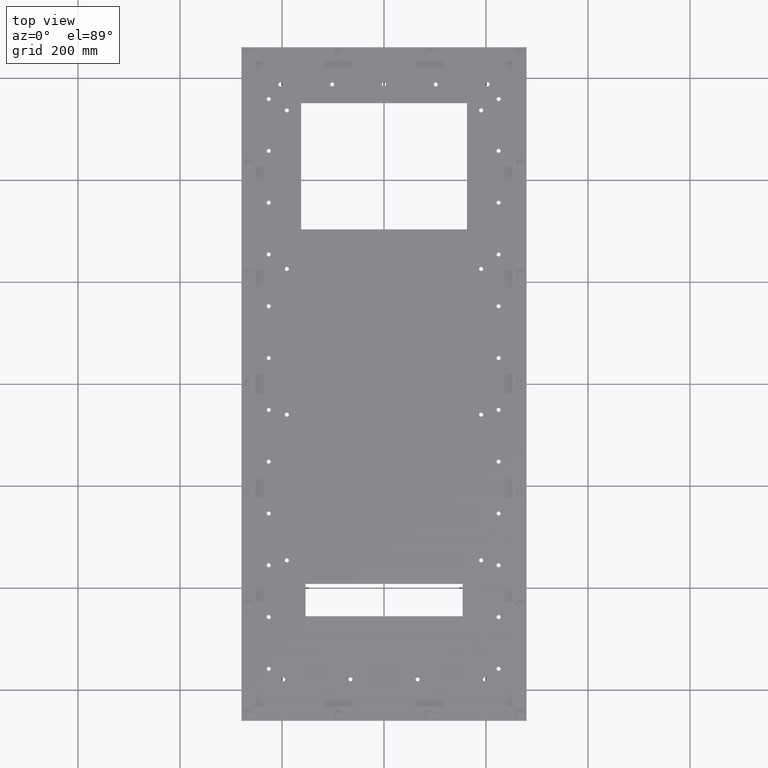
[diagram: clean part render]
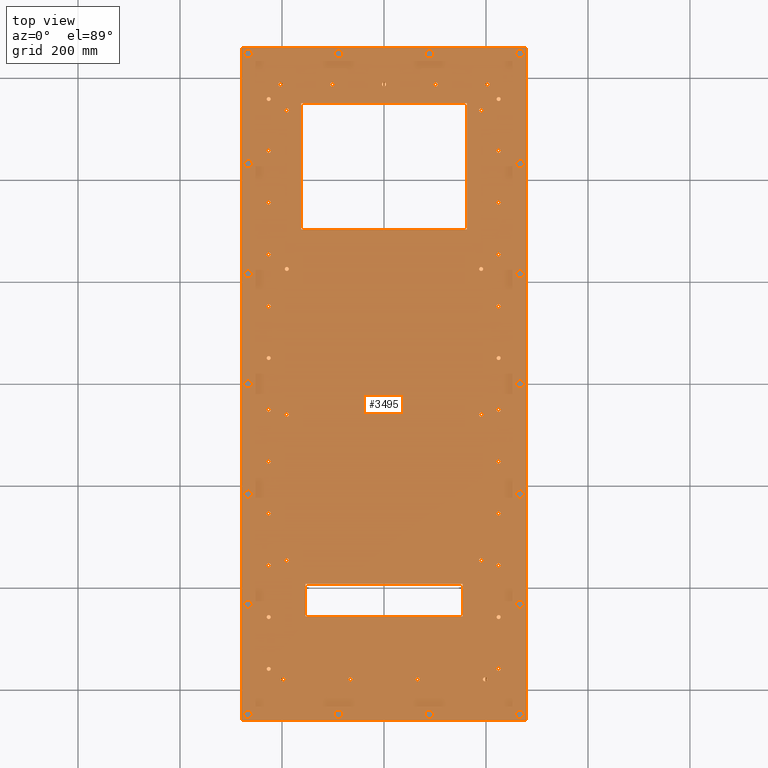
[diagram: same view with one face highlighted and labeled with its STEP entity id]
A machine part, top view. The second image highlights one B-rep face of the part: STEP entity #3495.
In plain terms, the highlighted planar face has unit normal (0, 0, 1).
Its self-contained STEP definition (entity closure, byte-faithful):
#175=LINE('',#5169,#328);
#178=LINE('',#5175,#331);
#181=LINE('',#5181,#334);
#184=LINE('',#5185,#337);
#187=LINE('',#5193,#340);
#190=LINE('',#5199,#343);
#193=LINE('',#5205,#346);
#196=LINE('',#5209,#349);
#197=LINE('',#5423,#350);
#201=LINE('',#5431,#354);
#204=LINE('',#5437,#357);
#207=LINE('',#5442,#360);
#328=VECTOR('',#4163,9.75000000000001);
#331=VECTOR('',#4168,12.81);
#334=VECTOR('',#4173,9.75);
#337=VECTOR('',#4178,12.81);
#340=VECTOR('',#4183,2.5);
#343=VECTOR('',#4188,12.13);
#346=VECTOR('',#4193,2.5);
#349=VECTOR('',#4198,12.13);
#350=VECTOR('',#4453,52.);
#354=VECTOR('',#4459,22.);
#357=VECTOR('',#4464,52.);
#360=VECTOR('',#4469,22.);
#491=PLANE('',#3811);
#618=FACE_BOUND('',#1149,.T.);
#619=FACE_BOUND('',#1150,.T.);
#620=FACE_BOUND('',#1151,.T.);
#621=FACE_BOUND('',#1152,.T.);
#622=FACE_BOUND('',#1153,.T.);
#623=FACE_BOUND('',#1154,.T.);
#624=FACE_BOUND('',#1155,.T.);
#625=FACE_BOUND('',#1156,.T.);
#626=FACE_BOUND('',#1157,.T.);
#627=FACE_BOUND('',#1158,.T.);
#628=FACE_BOUND('',#1159,.T.);
#629=FACE_BOUND('',#1160,.T.);
#630=FACE_BOUND('',#1161,.T.);
#631=FACE_BOUND('',#1162,.T.);
#632=FACE_BOUND('',#1163,.T.);
#633=FACE_BOUND('',#1164,.T.);
#634=FACE_BOUND('',#1165,.T.);
#635=FACE_BOUND('',#1166,.T.);
#636=FACE_BOUND('',#1167,.T.);
#637=FACE_BOUND('',#1168,.T.);
#638=FACE_BOUND('',#1169,.T.);
#639=FACE_BOUND('',#1170,.T.);
#640=FACE_BOUND('',#1171,.T.);
#641=FACE_BOUND('',#1172,.T.);
#642=FACE_BOUND('',#1173,.T.);
#643=FACE_BOUND('',#1174,.T.);
#644=FACE_BOUND('',#1175,.T.);
#645=FACE_BOUND('',#1176,.T.);
#646=FACE_BOUND('',#1177,.T.);
#647=FACE_BOUND('',#1178,.T.);
#648=FACE_BOUND('',#1179,.T.);
#649=FACE_BOUND('',#1180,.T.);
#650=FACE_BOUND('',#1181,.T.);
#651=FACE_BOUND('',#1182,.T.);
#652=FACE_BOUND('',#1183,.T.);
#653=FACE_BOUND('',#1184,.T.);
#654=FACE_BOUND('',#1185,.T.);
#655=FACE_BOUND('',#1186,.T.);
#656=FACE_BOUND('',#1187,.T.);
#657=FACE_BOUND('',#1188,.T.);
#658=FACE_BOUND('',#1189,.T.);
#659=FACE_BOUND('',#1190,.T.);
#660=FACE_BOUND('',#1191,.T.);
#661=FACE_BOUND('',#1192,.T.);
#662=FACE_BOUND('',#1193,.T.);
#663=FACE_BOUND('',#1194,.T.);
#664=FACE_BOUND('',#1195,.T.);
#665=FACE_BOUND('',#1196,.T.);
#666=FACE_BOUND('',#1197,.T.);
#667=FACE_BOUND('',#1198,.T.);
#668=FACE_BOUND('',#1199,.T.);
#669=FACE_BOUND('',#1200,.T.);
#670=FACE_BOUND('',#1201,.T.);
#671=FACE_BOUND('',#1202,.T.);
#672=FACE_BOUND('',#1203,.T.);
#673=FACE_BOUND('',#1204,.T.);
#674=FACE_BOUND('',#1205,.T.);
#675=FACE_BOUND('',#1206,.T.);
#676=FACE_BOUND('',#1207,.T.);
#677=FACE_BOUND('',#1208,.T.);
#678=FACE_BOUND('',#1209,.T.);
#899=FACE_OUTER_BOUND('',#1148,.T.);
#1148=EDGE_LOOP('',(#2564,#2565,#2566,#2567));
#1149=EDGE_LOOP('',(#2568));
#1150=EDGE_LOOP('',(#2569));
#1151=EDGE_LOOP('',(#2570));
#1152=EDGE_LOOP('',(#2571));
#1153=EDGE_LOOP('',(#2572));
#1154=EDGE_LOOP('',(#2573));
#1155=EDGE_LOOP('',(#2574));
#1156=EDGE_LOOP('',(#2575));
#1157=EDGE_LOOP('',(#2576));
#1158=EDGE_LOOP('',(#2577));
#1159=EDGE_LOOP('',(#2578));
#1160=EDGE_LOOP('',(#2579));
#1161=EDGE_LOOP('',(#2580));
#1162=EDGE_LOOP('',(#2581));
#1163=EDGE_LOOP('',(#2582));
#1164=EDGE_LOOP('',(#2583));
#1165=EDGE_LOOP('',(#2584));
#1166=EDGE_LOOP('',(#2585,#2586,#2587,#2588));
#1167=EDGE_LOOP('',(#2589,#2590,#2591,#2592));
#1168=EDGE_LOOP('',(#2593));
#1169=EDGE_LOOP('',(#2594));
#1170=EDGE_LOOP('',(#2595));
#1171=EDGE_LOOP('',(#2596));
#1172=EDGE_LOOP('',(#2597));
#1173=EDGE_LOOP('',(#2598));
#1174=EDGE_LOOP('',(#2599));
#1175=EDGE_LOOP('',(#2600));
#1176=EDGE_LOOP('',(#2601));
#1177=EDGE_LOOP('',(#2602));
#1178=EDGE_LOOP('',(#2603));
#1179=EDGE_LOOP('',(#2604));
#1180=EDGE_LOOP('',(#2605));
#1181=EDGE_LOOP('',(#2606));
#1182=EDGE_LOOP('',(#2607));
#1183=EDGE_LOOP('',(#2608));
#1184=EDGE_LOOP('',(#2609));
#1185=EDGE_LOOP('',(#2610));
#1186=EDGE_LOOP('',(#2611));
#1187=EDGE_LOOP('',(#2612));
#1188=EDGE_LOOP('',(#2613));
#1189=EDGE_LOOP('',(#2614));
#1190=EDGE_LOOP('',(#2615));
#1191=EDGE_LOOP('',(#2616));
#1192=EDGE_LOOP('',(#2617));
#1193=EDGE_LOOP('',(#2618));
#1194=EDGE_LOOP('',(#2619));
#1195=EDGE_LOOP('',(#2620));
#1196=EDGE_LOOP('',(#2621));
#1197=EDGE_LOOP('',(#2622));
#1198=EDGE_LOOP('',(#2623));
#1199=EDGE_LOOP('',(#2624));
#1200=EDGE_LOOP('',(#2625));
#1201=EDGE_LOOP('',(#2626));
#1202=EDGE_LOOP('',(#2627));
#1203=EDGE_LOOP('',(#2628));
#1204=EDGE_LOOP('',(#2629));
#1205=EDGE_LOOP('',(#2630));
#1206=EDGE_LOOP('',(#2631));
#1207=EDGE_LOOP('',(#2632));
#1208=EDGE_LOOP('',(#2633));
#1209=EDGE_LOOP('',(#2634));
#1477=CIRCLE('',#3623,0.140625);
#1479=CIRCLE('',#3626,0.140625);
#1481=CIRCLE('',#3629,0.140625);
#1483=CIRCLE('',#3632,0.140625);
#1485=CIRCLE('',#3635,0.140625);
#1487=CIRCLE('',#3638,0.140625);
#1489=CIRCLE('',#3641,0.140625);
#1491=CIRCLE('',#3644,0.140625);
#1493=CIRCLE('',#3647,0.140625);
#1495=CIRCLE('',#3650,0.140625);
#1497=CIRCLE('',#3653,0.140625);
#1499=CIRCLE('',#3656,0.140625);
#1501=CIRCLE('',#3659,0.140625);
#1503=CIRCLE('',#3662,0.140625);
#1505=CIRCLE('',#3665,0.140625);
#1507=CIRCLE('',#3668,0.140625);
#1509=CIRCLE('',#3671,0.140625);
#1512=CIRCLE('',#3683,0.156);
#1514=CIRCLE('',#3686,0.156);
#1516=CIRCLE('',#3689,0.156);
#1518=CIRCLE('',#3692,0.156);
#1520=CIRCLE('',#3695,0.156);
#1522=CIRCLE('',#3698,0.156);
#1524=CIRCLE('',#3701,0.156);
#1526=CIRCLE('',#3704,0.156);
#1528=CIRCLE('',#3707,0.156);
#1530=CIRCLE('',#3710,0.156);
#1532=CIRCLE('',#3713,0.156);
#1534=CIRCLE('',#3716,0.156);
#1536=CIRCLE('',#3719,0.156);
#1538=CIRCLE('',#3722,0.156);
#1540=CIRCLE('',#3725,0.156);
#1542=CIRCLE('',#3728,0.156);
#1544=CIRCLE('',#3731,0.156);
#1546=CIRCLE('',#3734,0.156);
#1548=CIRCLE('',#3737,0.156);
#1550=CIRCLE('',#3740,0.156);
#1552=CIRCLE('',#3743,0.156);
#1554=CIRCLE('',#3746,0.156);
#1556=CIRCLE('',#3749,0.156);
#1558=CIRCLE('',#3752,0.156);
#1560=CIRCLE('',#3755,0.156);
#1562=CIRCLE('',#3758,0.156);
#1564=CIRCLE('',#3761,0.156);
#1566=CIRCLE('',#3764,0.156);
#1568=CIRCLE('',#3767,0.156);
#1570=CIRCLE('',#3770,0.156);
#1572=CIRCLE('',#3773,0.156);
#1574=CIRCLE('',#3776,0.156);
#1576=CIRCLE('',#3779,0.156);
#1578=CIRCLE('',#3782,0.156);
#1580=CIRCLE('',#3785,0.156);
#1582=CIRCLE('',#3788,0.156);
#1584=CIRCLE('',#3791,0.155999999999999);
#1586=CIRCLE('',#3794,0.155999999999999);
#1588=CIRCLE('',#3797,0.155999999999999);
#1590=CIRCLE('',#3800,0.155999999999999);
#1592=CIRCLE('',#3803,0.155999999999999);
#1593=CIRCLE('',#3805,0.140625);
#1689=VERTEX_POINT('',#5078);
#1691=VERTEX_POINT('',#5083);
#1693=VERTEX_POINT('',#5088);
#1695=VERTEX_POINT('',#5093);
#1697=VERTEX_POINT('',#5098);
#1699=VERTEX_POINT('',#5103);
#1701=VERTEX_POINT('',#5108);
#1703=VERTEX_POINT('',#5113);
#1705=VERTEX_POINT('',#5118);
#1707=VERTEX_POINT('',#5123);
#1709=VERTEX_POINT('',#5128);
#1711=VERTEX_POINT('',#5133);
#1713=VERTEX_POINT('',#5138);
#1715=VERTEX_POINT('',#5143);
#1717=VERTEX_POINT('',#5148);
#1719=VERTEX_POINT('',#5153);
#1721=VERTEX_POINT('',#5158);
#1725=VERTEX_POINT('',#5166);
#1726=VERTEX_POINT('',#5168);
#1728=VERTEX_POINT('',#5174);
#1730=VERTEX_POINT('',#5180);
#1733=VERTEX_POINT('',#5190);
#1734=VERTEX_POINT('',#5192);
#1736=VERTEX_POINT('',#5198);
#1738=VERTEX_POINT('',#5204);
#1740=VERTEX_POINT('',#5213);
#1742=VERTEX_POINT('',#5218);
#1744=VERTEX_POINT('',#5223);
#1746=VERTEX_POINT('',#5228);
#1748=VERTEX_POINT('',#5233);
#1750=VERTEX_POINT('',#5238);
#1752=VERTEX_POINT('',#5243);
#1754=VERTEX_POINT('',#5248);
#1756=VERTEX_POINT('',#5253);
#1758=VERTEX_POINT('',#5258);
#1760=VERTEX_POINT('',#5263);
#1762=VERTEX_POINT('',#5268);
#1764=VERTEX_POINT('',#5273);
#1766=VERTEX_POINT('',#5278);
#1768=VERTEX_POINT('',#5283);
#1770=VERTEX_POINT('',#5288);
#1772=VERTEX_POINT('',#5293);
#1774=VERTEX_POINT('',#5298);
#1776=VERTEX_POINT('',#5303);
#1778=VERTEX_POINT('',#5308);
#1780=VERTEX_POINT('',#5313);
#1782=VERTEX_POINT('',#5318);
#1784=VERTEX_POINT('',#5323);
#1786=VERTEX_POINT('',#5328);
#1788=VERTEX_POINT('',#5333);
#1790=VERTEX_POINT('',#5338);
#1792=VERTEX_POINT('',#5343);
#1794=VERTEX_POINT('',#5348);
#1796=VERTEX_POINT('',#5353);
#1798=VERTEX_POINT('',#5358);
#1800=VERTEX_POINT('',#5363);
#1802=VERTEX_POINT('',#5368);
#1804=VERTEX_POINT('',#5373);
#1806=VERTEX_POINT('',#5378);
#1808=VERTEX_POINT('',#5383);
#1810=VERTEX_POINT('',#5388);
#1812=VERTEX_POINT('',#5393);
#1814=VERTEX_POINT('',#5398);
#1816=VERTEX_POINT('',#5403);
#1818=VERTEX_POINT('',#5408);
#1820=VERTEX_POINT('',#5413);
#1821=VERTEX_POINT('',#5416);
#1823=VERTEX_POINT('',#5421);
#1824=VERTEX_POINT('',#5422);
#1827=VERTEX_POINT('',#5430);
#1829=VERTEX_POINT('',#5436);
#2007=EDGE_CURVE('',#1689,#1689,#1477,.T.);
#2009=EDGE_CURVE('',#1691,#1691,#1479,.T.);
#2011=EDGE_CURVE('',#1693,#1693,#1481,.T.);
#2013=EDGE_CURVE('',#1695,#1695,#1483,.T.);
#2015=EDGE_CURVE('',#1697,#1697,#1485,.T.);
#2017=EDGE_CURVE('',#1699,#1699,#1487,.T.);
#2019=EDGE_CURVE('',#1701,#1701,#1489,.T.);
#2021=EDGE_CURVE('',#1703,#1703,#1491,.T.);
#2023=EDGE_CURVE('',#1705,#1705,#1493,.T.);
#2025=EDGE_CURVE('',#1707,#1707,#1495,.T.);
#2027=EDGE_CURVE('',#1709,#1709,#1497,.T.);
#2029=EDGE_CURVE('',#1711,#1711,#1499,.T.);
#2031=EDGE_CURVE('',#1713,#1713,#1501,.T.);
#2033=EDGE_CURVE('',#1715,#1715,#1503,.T.);
#2035=EDGE_CURVE('',#1717,#1717,#1505,.T.);
#2037=EDGE_CURVE('',#1719,#1719,#1507,.T.);
#2039=EDGE_CURVE('',#1721,#1721,#1509,.T.);
#2043=EDGE_CURVE('',#1726,#1725,#175,.T.);
#2046=EDGE_CURVE('',#1728,#1726,#178,.T.);
#2049=EDGE_CURVE('',#1730,#1728,#181,.T.);
#2052=EDGE_CURVE('',#1725,#1730,#184,.T.);
#2055=EDGE_CURVE('',#1734,#1733,#187,.T.);
#2058=EDGE_CURVE('',#1736,#1734,#190,.T.);
#2061=EDGE_CURVE('',#1738,#1736,#193,.T.);
#2064=EDGE_CURVE('',#1733,#1738,#196,.T.);
#2066=EDGE_CURVE('',#1740,#1740,#1512,.T.);
#2068=EDGE_CURVE('',#1742,#1742,#1514,.T.);
#2070=EDGE_CURVE('',#1744,#1744,#1516,.T.);
#2072=EDGE_CURVE('',#1746,#1746,#1518,.T.);
#2074=EDGE_CURVE('',#1748,#1748,#1520,.T.);
#2076=EDGE_CURVE('',#1750,#1750,#1522,.T.);
#2078=EDGE_CURVE('',#1752,#1752,#1524,.T.);
#2080=EDGE_CURVE('',#1754,#1754,#1526,.T.);
#2082=EDGE_CURVE('',#1756,#1756,#1528,.T.);
#2084=EDGE_CURVE('',#1758,#1758,#1530,.T.);
#2086=EDGE_CURVE('',#1760,#1760,#1532,.T.);
#2088=EDGE_CURVE('',#1762,#1762,#1534,.T.);
#2090=EDGE_CURVE('',#1764,#1764,#1536,.T.);
#2092=EDGE_CURVE('',#1766,#1766,#1538,.T.);
#2094=EDGE_CURVE('',#1768,#1768,#1540,.T.);
#2096=EDGE_CURVE('',#1770,#1770,#1542,.T.);
#2098=EDGE_CURVE('',#1772,#1772,#1544,.T.);
#2100=EDGE_CURVE('',#1774,#1774,#1546,.T.);
#2102=EDGE_CURVE('',#1776,#1776,#1548,.T.);
#2104=EDGE_CURVE('',#1778,#1778,#1550,.T.);
#2106=EDGE_CURVE('',#1780,#1780,#1552,.T.);
#2108=EDGE_CURVE('',#1782,#1782,#1554,.T.);
#2110=EDGE_CURVE('',#1784,#1784,#1556,.T.);
#2112=EDGE_CURVE('',#1786,#1786,#1558,.T.);
#2114=EDGE_CURVE('',#1788,#1788,#1560,.T.);
#2116=EDGE_CURVE('',#1790,#1790,#1562,.T.);
#2118=EDGE_CURVE('',#1792,#1792,#1564,.T.);
#2120=EDGE_CURVE('',#1794,#1794,#1566,.T.);
#2122=EDGE_CURVE('',#1796,#1796,#1568,.T.);
#2124=EDGE_CURVE('',#1798,#1798,#1570,.T.);
#2126=EDGE_CURVE('',#1800,#1800,#1572,.T.);
#2128=EDGE_CURVE('',#1802,#1802,#1574,.T.);
#2130=EDGE_CURVE('',#1804,#1804,#1576,.T.);
#2132=EDGE_CURVE('',#1806,#1806,#1578,.T.);
#2134=EDGE_CURVE('',#1808,#1808,#1580,.T.);
#2136=EDGE_CURVE('',#1810,#1810,#1582,.T.);
#2138=EDGE_CURVE('',#1812,#1812,#1584,.T.);
#2140=EDGE_CURVE('',#1814,#1814,#1586,.T.);
#2142=EDGE_CURVE('',#1816,#1816,#1588,.T.);
#2144=EDGE_CURVE('',#1818,#1818,#1590,.T.);
#2146=EDGE_CURVE('',#1820,#1820,#1592,.T.);
#2147=EDGE_CURVE('',#1821,#1821,#1593,.T.);
#2149=EDGE_CURVE('',#1823,#1824,#197,.T.);
#2153=EDGE_CURVE('',#1824,#1827,#201,.T.);
#2156=EDGE_CURVE('',#1827,#1829,#204,.T.);
#2159=EDGE_CURVE('',#1829,#1823,#207,.T.);
#2564=ORIENTED_EDGE('',*,*,#2149,.F.);
#2565=ORIENTED_EDGE('',*,*,#2159,.F.);
#2566=ORIENTED_EDGE('',*,*,#2156,.F.);
#2567=ORIENTED_EDGE('',*,*,#2153,.F.);
#2568=ORIENTED_EDGE('',*,*,#2007,.T.);
#2569=ORIENTED_EDGE('',*,*,#2009,.T.);
#2570=ORIENTED_EDGE('',*,*,#2011,.T.);
#2571=ORIENTED_EDGE('',*,*,#2013,.T.);
#2572=ORIENTED_EDGE('',*,*,#2015,.T.);
#2573=ORIENTED_EDGE('',*,*,#2017,.T.);
#2574=ORIENTED_EDGE('',*,*,#2019,.T.);
#2575=ORIENTED_EDGE('',*,*,#2021,.T.);
#2576=ORIENTED_EDGE('',*,*,#2023,.T.);
#2577=ORIENTED_EDGE('',*,*,#2025,.T.);
#2578=ORIENTED_EDGE('',*,*,#2027,.T.);
#2579=ORIENTED_EDGE('',*,*,#2029,.T.);
#2580=ORIENTED_EDGE('',*,*,#2031,.T.);
#2581=ORIENTED_EDGE('',*,*,#2033,.T.);
#2582=ORIENTED_EDGE('',*,*,#2035,.T.);
#2583=ORIENTED_EDGE('',*,*,#2037,.T.);
#2584=ORIENTED_EDGE('',*,*,#2039,.T.);
#2585=ORIENTED_EDGE('',*,*,#2043,.T.);
#2586=ORIENTED_EDGE('',*,*,#2052,.T.);
#2587=ORIENTED_EDGE('',*,*,#2049,.T.);
#2588=ORIENTED_EDGE('',*,*,#2046,.T.);
#2589=ORIENTED_EDGE('',*,*,#2055,.T.);
#2590=ORIENTED_EDGE('',*,*,#2064,.T.);
#2591=ORIENTED_EDGE('',*,*,#2061,.T.);
#2592=ORIENTED_EDGE('',*,*,#2058,.T.);
#2593=ORIENTED_EDGE('',*,*,#2066,.T.);
#2594=ORIENTED_EDGE('',*,*,#2068,.T.);
#2595=ORIENTED_EDGE('',*,*,#2070,.T.);
#2596=ORIENTED_EDGE('',*,*,#2072,.T.);
#2597=ORIENTED_EDGE('',*,*,#2074,.T.);
#2598=ORIENTED_EDGE('',*,*,#2076,.T.);
#2599=ORIENTED_EDGE('',*,*,#2078,.T.);
#2600=ORIENTED_EDGE('',*,*,#2080,.T.);
#2601=ORIENTED_EDGE('',*,*,#2082,.T.);
#2602=ORIENTED_EDGE('',*,*,#2084,.T.);
#2603=ORIENTED_EDGE('',*,*,#2086,.T.);
#2604=ORIENTED_EDGE('',*,*,#2088,.T.);
#2605=ORIENTED_EDGE('',*,*,#2090,.T.);
#2606=ORIENTED_EDGE('',*,*,#2092,.T.);
#2607=ORIENTED_EDGE('',*,*,#2094,.T.);
#2608=ORIENTED_EDGE('',*,*,#2096,.T.);
#2609=ORIENTED_EDGE('',*,*,#2098,.T.);
#2610=ORIENTED_EDGE('',*,*,#2100,.T.);
#2611=ORIENTED_EDGE('',*,*,#2102,.T.);
#2612=ORIENTED_EDGE('',*,*,#2104,.T.);
#2613=ORIENTED_EDGE('',*,*,#2106,.T.);
#2614=ORIENTED_EDGE('',*,*,#2108,.T.);
#2615=ORIENTED_EDGE('',*,*,#2110,.T.);
#2616=ORIENTED_EDGE('',*,*,#2112,.T.);
#2617=ORIENTED_EDGE('',*,*,#2114,.T.);
#2618=ORIENTED_EDGE('',*,*,#2116,.T.);
#2619=ORIENTED_EDGE('',*,*,#2118,.T.);
#2620=ORIENTED_EDGE('',*,*,#2120,.T.);
#2621=ORIENTED_EDGE('',*,*,#2122,.T.);
#2622=ORIENTED_EDGE('',*,*,#2124,.T.);
#2623=ORIENTED_EDGE('',*,*,#2126,.T.);
#2624=ORIENTED_EDGE('',*,*,#2128,.T.);
#2625=ORIENTED_EDGE('',*,*,#2130,.T.);
#2626=ORIENTED_EDGE('',*,*,#2132,.T.);
#2627=ORIENTED_EDGE('',*,*,#2134,.T.);
#2628=ORIENTED_EDGE('',*,*,#2136,.T.);
#2629=ORIENTED_EDGE('',*,*,#2138,.T.);
#2630=ORIENTED_EDGE('',*,*,#2140,.T.);
#2631=ORIENTED_EDGE('',*,*,#2142,.T.);
#2632=ORIENTED_EDGE('',*,*,#2144,.T.);
#2633=ORIENTED_EDGE('',*,*,#2146,.T.);
#2634=ORIENTED_EDGE('',*,*,#2147,.T.);
#3495=ADVANCED_FACE('',(#899,#618,#619,#620,#621,#622,#623,#624,#625,#626,
#627,#628,#629,#630,#631,#632,#633,#634,#635,#636,#637,#638,#639,#640,#641,
#642,#643,#644,#645,#646,#647,#648,#649,#650,#651,#652,#653,#654,#655,#656,
#657,#658,#659,#660,#661,#662,#663,#664,#665,#666,#667,#668,#669,#670,#671,
#672,#673,#674,#675,#676,#677,#678),#491,.T.);
#3623=AXIS2_PLACEMENT_3D('',#5079,#4059,#4060);
#3626=AXIS2_PLACEMENT_3D('',#5084,#4065,#4066);
#3629=AXIS2_PLACEMENT_3D('',#5089,#4071,#4072);
#3632=AXIS2_PLACEMENT_3D('',#5094,#4077,#4078);
#3635=AXIS2_PLACEMENT_3D('',#5099,#4083,#4084);
#3638=AXIS2_PLACEMENT_3D('',#5104,#4089,#4090);
#3641=AXIS2_PLACEMENT_3D('',#5109,#4095,#4096);
#3644=AXIS2_PLACEMENT_3D('',#5114,#4101,#4102);
#3647=AXIS2_PLACEMENT_3D('',#5119,#4107,#4108);
#3650=AXIS2_PLACEMENT_3D('',#5124,#4113,#4114);
#3653=AXIS2_PLACEMENT_3D('',#5129,#4119,#4120);
#3656=AXIS2_PLACEMENT_3D('',#5134,#4125,#4126);
#3659=AXIS2_PLACEMENT_3D('',#5139,#4131,#4132);
#3662=AXIS2_PLACEMENT_3D('',#5144,#4137,#4138);
#3665=AXIS2_PLACEMENT_3D('',#5149,#4143,#4144);
#3668=AXIS2_PLACEMENT_3D('',#5154,#4149,#4150);
#3671=AXIS2_PLACEMENT_3D('',#5159,#4155,#4156);
#3683=AXIS2_PLACEMENT_3D('',#5214,#4203,#4204);
#3686=AXIS2_PLACEMENT_3D('',#5219,#4209,#4210);
#3689=AXIS2_PLACEMENT_3D('',#5224,#4215,#4216);
#3692=AXIS2_PLACEMENT_3D('',#5229,#4221,#4222);
#3695=AXIS2_PLACEMENT_3D('',#5234,#4227,#4228);
#3698=AXIS2_PLACEMENT_3D('',#5239,#4233,#4234);
#3701=AXIS2_PLACEMENT_3D('',#5244,#4239,#4240);
#3704=AXIS2_PLACEMENT_3D('',#5249,#4245,#4246);
#3707=AXIS2_PLACEMENT_3D('',#5254,#4251,#4252);
#3710=AXIS2_PLACEMENT_3D('',#5259,#4257,#4258);
#3713=AXIS2_PLACEMENT_3D('',#5264,#4263,#4264);
#3716=AXIS2_PLACEMENT_3D('',#5269,#4269,#4270);
#3719=AXIS2_PLACEMENT_3D('',#5274,#4275,#4276);
#3722=AXIS2_PLACEMENT_3D('',#5279,#4281,#4282);
#3725=AXIS2_PLACEMENT_3D('',#5284,#4287,#4288);
#3728=AXIS2_PLACEMENT_3D('',#5289,#4293,#4294);
#3731=AXIS2_PLACEMENT_3D('',#5294,#4299,#4300);
#3734=AXIS2_PLACEMENT_3D('',#5299,#4305,#4306);
#3737=AXIS2_PLACEMENT_3D('',#5304,#4311,#4312);
#3740=AXIS2_PLACEMENT_3D('',#5309,#4317,#4318);
#3743=AXIS2_PLACEMENT_3D('',#5314,#4323,#4324);
#3746=AXIS2_PLACEMENT_3D('',#5319,#4329,#4330);
#3749=AXIS2_PLACEMENT_3D('',#5324,#4335,#4336);
#3752=AXIS2_PLACEMENT_3D('',#5329,#4341,#4342);
#3755=AXIS2_PLACEMENT_3D('',#5334,#4347,#4348);
#3758=AXIS2_PLACEMENT_3D('',#5339,#4353,#4354);
#3761=AXIS2_PLACEMENT_3D('',#5344,#4359,#4360);
#3764=AXIS2_PLACEMENT_3D('',#5349,#4365,#4366);
#3767=AXIS2_PLACEMENT_3D('',#5354,#4371,#4372);
#3770=AXIS2_PLACEMENT_3D('',#5359,#4377,#4378);
#3773=AXIS2_PLACEMENT_3D('',#5364,#4383,#4384);
#3776=AXIS2_PLACEMENT_3D('',#5369,#4389,#4390);
#3779=AXIS2_PLACEMENT_3D('',#5374,#4395,#4396);
#3782=AXIS2_PLACEMENT_3D('',#5379,#4401,#4402);
#3785=AXIS2_PLACEMENT_3D('',#5384,#4407,#4408);
#3788=AXIS2_PLACEMENT_3D('',#5389,#4413,#4414);
#3791=AXIS2_PLACEMENT_3D('',#5394,#4419,#4420);
#3794=AXIS2_PLACEMENT_3D('',#5399,#4425,#4426);
#3797=AXIS2_PLACEMENT_3D('',#5404,#4431,#4432);
#3800=AXIS2_PLACEMENT_3D('',#5409,#4437,#4438);
#3803=AXIS2_PLACEMENT_3D('',#5414,#4443,#4444);
#3805=AXIS2_PLACEMENT_3D('',#5417,#4447,#4448);
#3811=AXIS2_PLACEMENT_3D('',#5444,#4471,#4472);
#4059=DIRECTION('center_axis',(0.,0.,-1.));
#4060=DIRECTION('ref_axis',(1.,0.,0.));
#4065=DIRECTION('center_axis',(0.,0.,-1.));
#4066=DIRECTION('ref_axis',(1.,0.,0.));
#4071=DIRECTION('center_axis',(0.,0.,-1.));
#4072=DIRECTION('ref_axis',(1.,0.,0.));
#4077=DIRECTION('center_axis',(0.,0.,-1.));
#4078=DIRECTION('ref_axis',(1.,0.,0.));
#4083=DIRECTION('center_axis',(0.,0.,-1.));
#4084=DIRECTION('ref_axis',(1.,0.,0.));
#4089=DIRECTION('center_axis',(0.,0.,-1.));
#4090=DIRECTION('ref_axis',(1.,0.,0.));
#4095=DIRECTION('center_axis',(0.,0.,-1.));
#4096=DIRECTION('ref_axis',(1.,0.,0.));
#4101=DIRECTION('center_axis',(0.,0.,-1.));
#4102=DIRECTION('ref_axis',(1.,0.,0.));
#4107=DIRECTION('center_axis',(0.,0.,-1.));
#4108=DIRECTION('ref_axis',(1.,0.,0.));
#4113=DIRECTION('center_axis',(0.,0.,-1.));
#4114=DIRECTION('ref_axis',(1.,0.,0.));
#4119=DIRECTION('center_axis',(0.,0.,-1.));
#4120=DIRECTION('ref_axis',(1.,0.,0.));
#4125=DIRECTION('center_axis',(0.,0.,-1.));
#4126=DIRECTION('ref_axis',(1.,0.,0.));
#4131=DIRECTION('center_axis',(0.,0.,-1.));
#4132=DIRECTION('ref_axis',(1.,0.,0.));
#4137=DIRECTION('center_axis',(0.,0.,-1.));
#4138=DIRECTION('ref_axis',(1.,0.,0.));
#4143=DIRECTION('center_axis',(0.,0.,-1.));
#4144=DIRECTION('ref_axis',(1.,0.,0.));
#4149=DIRECTION('center_axis',(0.,0.,-1.));
#4150=DIRECTION('ref_axis',(1.,0.,0.));
#4155=DIRECTION('center_axis',(0.,0.,-1.));
#4156=DIRECTION('ref_axis',(1.,0.,0.));
#4163=DIRECTION('',(0.,1.,0.));
#4168=DIRECTION('',(-1.,0.,0.));
#4173=DIRECTION('',(0.,-1.,0.));
#4178=DIRECTION('',(1.,-4.36754464560844E-16,0.));
#4183=DIRECTION('',(-2.79741234551221E-16,1.,0.));
#4188=DIRECTION('',(-1.,0.,0.));
#4193=DIRECTION('',(0.,-1.,0.));
#4198=DIRECTION('',(1.,0.,0.));
#4203=DIRECTION('center_axis',(0.,0.,-1.));
#4204=DIRECTION('ref_axis',(-1.,0.,0.));
#4209=DIRECTION('center_axis',(0.,0.,-1.));
#4210=DIRECTION('ref_axis',(-1.,0.,0.));
#4215=DIRECTION('center_axis',(0.,0.,-1.));
#4216=DIRECTION('ref_axis',(-1.,0.,0.));
#4221=DIRECTION('center_axis',(0.,0.,-1.));
#4222=DIRECTION('ref_axis',(-1.,0.,0.));
#4227=DIRECTION('center_axis',(0.,0.,-1.));
#4228=DIRECTION('ref_axis',(-1.,0.,0.));
#4233=DIRECTION('center_axis',(0.,0.,-1.));
#4234=DIRECTION('ref_axis',(-1.,0.,0.));
#4239=DIRECTION('center_axis',(0.,0.,-1.));
#4240=DIRECTION('ref_axis',(-1.,0.,0.));
#4245=DIRECTION('center_axis',(0.,0.,-1.));
#4246=DIRECTION('ref_axis',(-1.,0.,0.));
#4251=DIRECTION('center_axis',(0.,0.,-1.));
#4252=DIRECTION('ref_axis',(-1.,0.,0.));
#4257=DIRECTION('center_axis',(0.,0.,-1.));
#4258=DIRECTION('ref_axis',(-1.,0.,0.));
#4263=DIRECTION('center_axis',(0.,0.,-1.));
#4264=DIRECTION('ref_axis',(-1.,0.,0.));
#4269=DIRECTION('center_axis',(0.,0.,-1.));
#4270=DIRECTION('ref_axis',(-1.,0.,0.));
#4275=DIRECTION('center_axis',(0.,0.,-1.));
#4276=DIRECTION('ref_axis',(-1.,0.,0.));
#4281=DIRECTION('center_axis',(0.,0.,-1.));
#4282=DIRECTION('ref_axis',(-1.,0.,0.));
#4287=DIRECTION('center_axis',(0.,0.,-1.));
#4288=DIRECTION('ref_axis',(-1.,0.,0.));
#4293=DIRECTION('center_axis',(0.,0.,-1.));
#4294=DIRECTION('ref_axis',(-1.,0.,0.));
#4299=DIRECTION('center_axis',(0.,0.,-1.));
#4300=DIRECTION('ref_axis',(-1.,0.,0.));
#4305=DIRECTION('center_axis',(0.,0.,-1.));
#4306=DIRECTION('ref_axis',(-1.,0.,0.));
#4311=DIRECTION('center_axis',(0.,0.,-1.));
#4312=DIRECTION('ref_axis',(-1.,0.,0.));
#4317=DIRECTION('center_axis',(0.,0.,-1.));
#4318=DIRECTION('ref_axis',(-1.,0.,0.));
#4323=DIRECTION('center_axis',(0.,0.,-1.));
#4324=DIRECTION('ref_axis',(-1.,0.,0.));
#4329=DIRECTION('center_axis',(0.,0.,-1.));
#4330=DIRECTION('ref_axis',(-1.,0.,0.));
#4335=DIRECTION('center_axis',(0.,0.,-1.));
#4336=DIRECTION('ref_axis',(-1.,0.,0.));
#4341=DIRECTION('center_axis',(0.,0.,-1.));
#4342=DIRECTION('ref_axis',(-1.,0.,0.));
#4347=DIRECTION('center_axis',(0.,0.,-1.));
#4348=DIRECTION('ref_axis',(-1.,0.,0.));
#4353=DIRECTION('center_axis',(0.,0.,-1.));
#4354=DIRECTION('ref_axis',(-1.,0.,0.));
#4359=DIRECTION('center_axis',(0.,0.,-1.));
#4360=DIRECTION('ref_axis',(-1.,0.,0.));
#4365=DIRECTION('center_axis',(0.,0.,-1.));
#4366=DIRECTION('ref_axis',(-1.,0.,0.));
#4371=DIRECTION('center_axis',(0.,0.,-1.));
#4372=DIRECTION('ref_axis',(-1.,0.,0.));
#4377=DIRECTION('center_axis',(0.,0.,-1.));
#4378=DIRECTION('ref_axis',(-1.,0.,0.));
#4383=DIRECTION('center_axis',(0.,0.,-1.));
#4384=DIRECTION('ref_axis',(-1.,0.,0.));
#4389=DIRECTION('center_axis',(0.,0.,-1.));
#4390=DIRECTION('ref_axis',(-1.,0.,0.));
#4395=DIRECTION('center_axis',(0.,0.,-1.));
#4396=DIRECTION('ref_axis',(-1.,0.,0.));
#4401=DIRECTION('center_axis',(0.,0.,-1.));
#4402=DIRECTION('ref_axis',(-1.,0.,0.));
#4407=DIRECTION('center_axis',(0.,0.,-1.));
#4408=DIRECTION('ref_axis',(-1.,0.,0.));
#4413=DIRECTION('center_axis',(0.,0.,-1.));
#4414=DIRECTION('ref_axis',(-1.,0.,0.));
#4419=DIRECTION('center_axis',(0.,0.,-1.));
#4420=DIRECTION('ref_axis',(-1.,0.,0.));
#4425=DIRECTION('center_axis',(0.,0.,-1.));
#4426=DIRECTION('ref_axis',(-1.,0.,0.));
#4431=DIRECTION('center_axis',(0.,0.,-1.));
#4432=DIRECTION('ref_axis',(-1.,0.,0.));
#4437=DIRECTION('center_axis',(0.,0.,-1.));
#4438=DIRECTION('ref_axis',(-1.,0.,0.));
#4443=DIRECTION('center_axis',(0.,0.,-1.));
#4444=DIRECTION('ref_axis',(-1.,0.,0.));
#4447=DIRECTION('center_axis',(0.,0.,-1.));
#4448=DIRECTION('ref_axis',(1.,0.,0.));
#4453=DIRECTION('',(5.37963912598501E-17,-1.,0.));
#4459=DIRECTION('',(-1.,0.,0.));
#4464=DIRECTION('',(-2.151855650394E-16,1.,0.));
#4469=DIRECTION('',(1.,0.,0.));
#4471=DIRECTION('center_axis',(0.,0.,1.));
#4472=DIRECTION('ref_axis',(1.,0.,0.));
#5078=CARTESIAN_POINT('',(10.640625,-25.5,0.125));
#5079=CARTESIAN_POINT('Origin',(10.5,-25.5,0.125));
#5083=CARTESIAN_POINT('',(3.640625,-25.5,0.125));
#5084=CARTESIAN_POINT('Origin',(3.5,-25.5,0.125));
#5088=CARTESIAN_POINT('',(-3.359375,-25.5,0.125));
#5089=CARTESIAN_POINT('Origin',(-3.5,-25.5,0.125));
#5093=CARTESIAN_POINT('',(-10.359375,-25.5,0.125));
#5094=CARTESIAN_POINT('Origin',(-10.5,-25.5,0.125));
#5098=CARTESIAN_POINT('',(10.640625,-17.,0.125));
#5099=CARTESIAN_POINT('Origin',(10.5,-17.,0.125));
#5103=CARTESIAN_POINT('',(-10.359375,-17.,0.125));
#5104=CARTESIAN_POINT('Origin',(-10.5,-17.,0.125));
#5108=CARTESIAN_POINT('',(10.640625,-8.5,0.125));
#5109=CARTESIAN_POINT('Origin',(10.5,-8.5,0.125));
#5113=CARTESIAN_POINT('',(-10.359375,-8.5,0.125));
#5114=CARTESIAN_POINT('Origin',(-10.5,-8.5,0.125));
#5118=CARTESIAN_POINT('',(10.640625,0.,0.125));
#5119=CARTESIAN_POINT('Origin',(10.5,0.,0.125));
#5123=CARTESIAN_POINT('',(-10.359375,0.,0.125));
#5124=CARTESIAN_POINT('Origin',(-10.5,0.,0.125));
#5128=CARTESIAN_POINT('',(10.640625,8.5,0.125));
#5129=CARTESIAN_POINT('Origin',(10.5,8.5,0.125));
#5133=CARTESIAN_POINT('',(-10.359375,8.5,0.125));
#5134=CARTESIAN_POINT('Origin',(-10.5,8.5,0.125));
#5138=CARTESIAN_POINT('',(10.640625,17.,0.125));
#5139=CARTESIAN_POINT('Origin',(10.5,17.,0.125));
#5143=CARTESIAN_POINT('',(-10.359375,17.,0.125));
#5144=CARTESIAN_POINT('Origin',(-10.5,17.,0.125));
#5148=CARTESIAN_POINT('',(10.640625,25.5,0.125));
#5149=CARTESIAN_POINT('Origin',(10.5,25.5,0.125));
#5153=CARTESIAN_POINT('',(3.64062499999999,25.5,0.125));
#5154=CARTESIAN_POINT('Origin',(3.49999999999999,25.5,0.125));
#5158=CARTESIAN_POINT('',(-3.35937500000001,25.5,0.125));
#5159=CARTESIAN_POINT('Origin',(-3.50000000000001,25.5,0.125));
#5166=CARTESIAN_POINT('',(-6.4,21.69,0.125));
#5168=CARTESIAN_POINT('',(-6.4,11.94,0.125));
#5169=CARTESIAN_POINT('',(-6.4,10.845,0.125));
#5174=CARTESIAN_POINT('',(6.41,11.94,0.125));
#5175=CARTESIAN_POINT('',(-3.2,11.94,0.125));
#5180=CARTESIAN_POINT('',(6.41,21.69,0.125));
#5181=CARTESIAN_POINT('',(6.41,5.97,0.125));
#5185=CARTESIAN_POINT('',(3.205,21.69,0.125));
#5190=CARTESIAN_POINT('',(-6.06,-15.44,0.125));
#5192=CARTESIAN_POINT('',(-6.05999999999999,-17.94,0.125));
#5193=CARTESIAN_POINT('',(-6.06,-7.72,0.125));
#5198=CARTESIAN_POINT('',(6.07000000000001,-17.94,0.125));
#5199=CARTESIAN_POINT('',(-3.03,-17.94,0.125));
#5204=CARTESIAN_POINT('',(6.07000000000001,-15.44,0.125));
#5205=CARTESIAN_POINT('',(6.07000000000001,-8.97,0.125));
#5209=CARTESIAN_POINT('',(3.035,-15.44,0.125));
#5213=CARTESIAN_POINT('',(7.946,-22.81,0.125));
#5214=CARTESIAN_POINT('Origin',(7.79,-22.81,0.125));
#5218=CARTESIAN_POINT('',(2.756,-22.81,0.125));
#5219=CARTESIAN_POINT('Origin',(2.6,-22.81,0.125));
#5223=CARTESIAN_POINT('',(-2.434,-22.81,0.125));
#5224=CARTESIAN_POINT('Origin',(-2.59,-22.81,0.125));
#5228=CARTESIAN_POINT('',(-7.624,-22.81,0.125));
#5229=CARTESIAN_POINT('Origin',(-7.78,-22.81,0.125));
#5233=CARTESIAN_POINT('',(7.65600000000006,21.13,0.125));
#5234=CARTESIAN_POINT('Origin',(7.50000000000006,21.13,0.125));
#5238=CARTESIAN_POINT('',(-7.34399999999987,21.13,0.125));
#5239=CARTESIAN_POINT('Origin',(-7.49999999999987,21.13,0.125));
#5243=CARTESIAN_POINT('',(7.65600000000006,8.88,0.125));
#5244=CARTESIAN_POINT('Origin',(7.50000000000007,8.88,0.125));
#5248=CARTESIAN_POINT('',(-7.34399999999987,8.87999999999999,0.125));
#5249=CARTESIAN_POINT('Origin',(-7.49999999999987,8.87999999999999,0.125));
#5253=CARTESIAN_POINT('',(7.65600000000007,-2.37000000000001,0.125));
#5254=CARTESIAN_POINT('Origin',(7.50000000000007,-2.37000000000001,0.125));
#5258=CARTESIAN_POINT('',(7.656,-13.62,0.125));
#5259=CARTESIAN_POINT('Origin',(7.5,-13.62,0.125));
#5263=CARTESIAN_POINT('',(-7.34399999999993,-2.37000000000001,0.125));
#5264=CARTESIAN_POINT('Origin',(-7.49999999999993,-2.37000000000001,0.125));
#5268=CARTESIAN_POINT('',(-7.344,-13.62,0.125));
#5269=CARTESIAN_POINT('Origin',(-7.5,-13.62,0.125));
#5273=CARTESIAN_POINT('',(9.00599999999999,22.,0.125));
#5274=CARTESIAN_POINT('Origin',(8.84999999999999,22.,0.125));
#5278=CARTESIAN_POINT('',(9.00599999999999,18.,0.125));
#5279=CARTESIAN_POINT('Origin',(8.84999999999999,18.,0.125));
#5283=CARTESIAN_POINT('',(9.00599999999999,14.,0.125));
#5284=CARTESIAN_POINT('Origin',(8.84999999999999,14.,0.125));
#5288=CARTESIAN_POINT('',(9.00599999999999,9.99999999999999,0.125));
#5289=CARTESIAN_POINT('Origin',(8.84999999999999,9.99999999999999,0.125));
#5293=CARTESIAN_POINT('',(9.00599999999999,5.99999999999999,0.125));
#5294=CARTESIAN_POINT('Origin',(8.85,5.99999999999999,0.125));
#5298=CARTESIAN_POINT('',(9.006,1.99999999999999,0.125));
#5299=CARTESIAN_POINT('Origin',(8.85,1.99999999999999,0.125));
#5303=CARTESIAN_POINT('',(9.006,-2.,0.125));
#5304=CARTESIAN_POINT('Origin',(8.85,-2.,0.125));
#5308=CARTESIAN_POINT('',(9.006,-6.,0.125));
#5309=CARTESIAN_POINT('Origin',(8.85,-6.,0.125));
#5313=CARTESIAN_POINT('',(9.006,-10.,0.125));
#5314=CARTESIAN_POINT('Origin',(8.85,-10.,0.125));
#5318=CARTESIAN_POINT('',(9.006,-14.,0.125));
#5319=CARTESIAN_POINT('Origin',(8.85,-14.,0.125));
#5323=CARTESIAN_POINT('',(9.006,-18.,0.125));
#5324=CARTESIAN_POINT('Origin',(8.85000000000001,-18.,0.125));
#5328=CARTESIAN_POINT('',(9.006,-22.,0.125));
#5329=CARTESIAN_POINT('Origin',(8.85000000000001,-22.,0.125));
#5333=CARTESIAN_POINT('',(-8.74400000000001,22.,0.125));
#5334=CARTESIAN_POINT('Origin',(-8.90000000000001,22.,0.125));
#5338=CARTESIAN_POINT('',(-8.74400000000001,18.,0.125));
#5339=CARTESIAN_POINT('Origin',(-8.90000000000001,18.,0.125));
#5343=CARTESIAN_POINT('',(-8.74400000000001,14.,0.125));
#5344=CARTESIAN_POINT('Origin',(-8.90000000000001,14.,0.125));
#5348=CARTESIAN_POINT('',(-8.74400000000001,9.99999999999999,0.125));
#5349=CARTESIAN_POINT('Origin',(-8.9,9.99999999999999,0.125));
#5353=CARTESIAN_POINT('',(-8.744,5.99999999999999,0.125));
#5354=CARTESIAN_POINT('Origin',(-8.9,5.99999999999999,0.125));
#5358=CARTESIAN_POINT('',(-8.744,1.99999999999999,0.125));
#5359=CARTESIAN_POINT('Origin',(-8.9,1.99999999999999,0.125));
#5363=CARTESIAN_POINT('',(-8.744,-2.,0.125));
#5364=CARTESIAN_POINT('Origin',(-8.9,-2.,0.125));
#5368=CARTESIAN_POINT('',(-8.744,-6.,0.125));
#5369=CARTESIAN_POINT('Origin',(-8.9,-6.,0.125));
#5373=CARTESIAN_POINT('',(-8.744,-10.,0.125));
#5374=CARTESIAN_POINT('Origin',(-8.9,-10.,0.125));
#5378=CARTESIAN_POINT('',(-8.744,-14.,0.125));
#5379=CARTESIAN_POINT('Origin',(-8.9,-14.,0.125));
#5383=CARTESIAN_POINT('',(-8.74399999999999,-18.,0.125));
#5384=CARTESIAN_POINT('Origin',(-8.9,-18.,0.125));
#5388=CARTESIAN_POINT('',(-8.74399999999999,-22.,0.125));
#5389=CARTESIAN_POINT('Origin',(-8.9,-22.,0.125));
#5393=CARTESIAN_POINT('',(8.15599999999999,23.13,0.125));
#5394=CARTESIAN_POINT('Origin',(7.99999999999999,23.13,0.125));
#5398=CARTESIAN_POINT('',(4.15599999999999,23.13,0.125));
#5399=CARTESIAN_POINT('Origin',(3.99999999999999,23.13,0.125));
#5403=CARTESIAN_POINT('',(0.155999999999995,23.13,0.125));
#5404=CARTESIAN_POINT('Origin',(-3.49676543189026E-15,23.13,0.125));
#5408=CARTESIAN_POINT('',(-3.844,23.13,0.125));
#5409=CARTESIAN_POINT('Origin',(-4.,23.13,0.125));
#5413=CARTESIAN_POINT('',(-7.84400000000001,23.13,0.125));
#5414=CARTESIAN_POINT('Origin',(-8.,23.13,0.125));
#5416=CARTESIAN_POINT('',(-10.359375,25.5,0.125));
#5417=CARTESIAN_POINT('Origin',(-10.5,25.5,0.125));
#5421=CARTESIAN_POINT('',(11.,26.,0.125));
#5422=CARTESIAN_POINT('',(11.,-26.,0.125));
#5423=CARTESIAN_POINT('',(11.,26.,0.125));
#5430=CARTESIAN_POINT('',(-11.,-26.,0.125));
#5431=CARTESIAN_POINT('',(11.,-26.,0.125));
#5436=CARTESIAN_POINT('',(-11.,26.,0.125));
#5437=CARTESIAN_POINT('',(-11.,-26.,0.125));
#5442=CARTESIAN_POINT('',(-11.,26.,0.125));
#5444=CARTESIAN_POINT('Origin',(0.,2.26129892303075E-15,0.125));